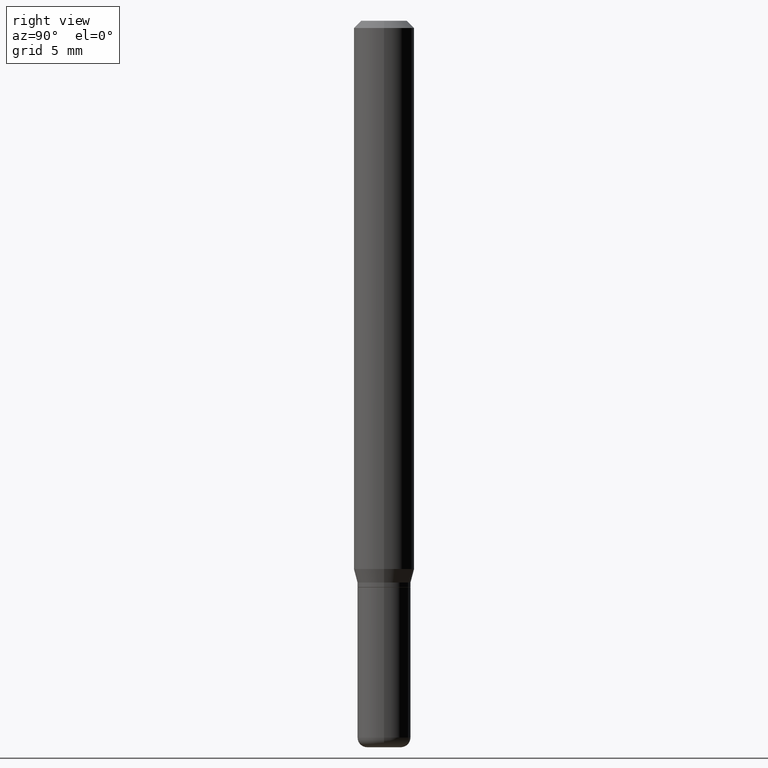
[diagram: clean part render]
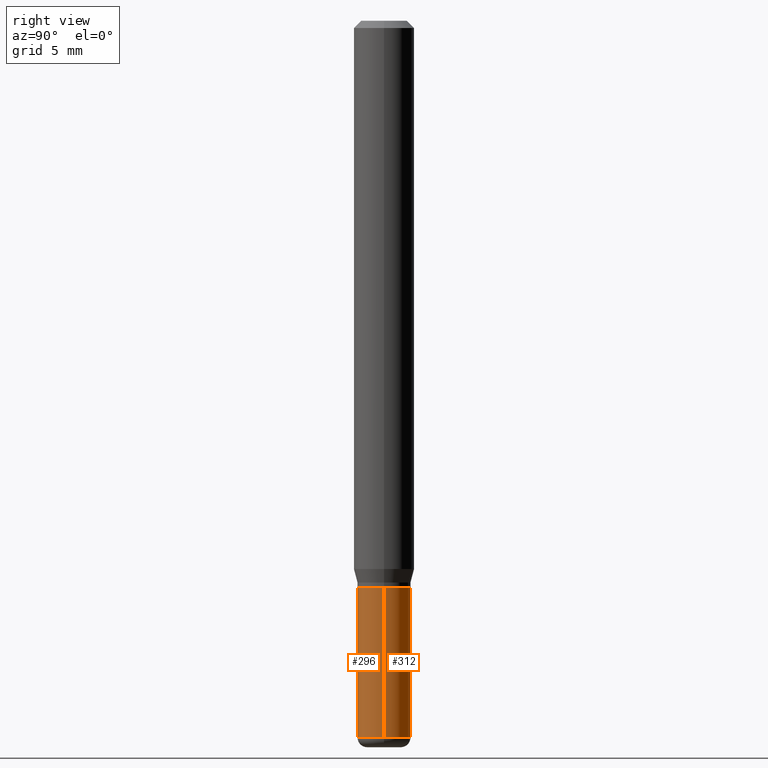
[diagram: same view with one multi-face feature highlighted, each face labeled with its STEP entity id]
A machine part, right view. The highlighted faces form ONE feature: a constant-radius fillet chain: 2 tangent blend faces with common blend radius 1.397 mm. The faces share edges in the B-rep.
Their STEP definitions:
[1] entity #312 (Cylinder):
#5 = DIRECTION ( 'NONE',  ( 1.000000000000000000, -6.982962677686265922E-15, 4.876176775795935232E-29 ) ) ;
#6 = ORIENTED_EDGE ( 'NONE', *, *, #426, .F. ) ;
#11 = LINE ( 'NONE', #58, #121 ) ;
#15 = CYLINDRICAL_SURFACE ( 'NONE', #168, 0.05500000000000002109 ) ;
#33 = LINE ( 'NONE', #191, #464 ) ;
#58 = CARTESIAN_POINT ( 'NONE',  ( -0.05500000000000002109, 3.907985046680552521E-16, -2.705414299640199063E-30 ) ) ;
#62 = DIRECTION ( 'NONE',  ( -2.445468806185136597E-29, 3.491481338843145583E-15, 1.000000000000000000 ) ) ;
#90 = CIRCLE ( 'NONE', #103, 0.05500000000000000028 ) ;
#97 = DIRECTION ( 'NONE',  ( 1.000000000000000000, -6.982962677686275388E-15, 0.000000000000000000 ) ) ;
#100 = CARTESIAN_POINT ( 'NONE',  ( 0.05500000000000000028, -4.469096113719225052E-15, -1.170000000000000151 ) ) ;
#103 = AXIS2_PLACEMENT_3D ( 'NONE', #419, #62, #222 ) ;
#121 = VECTOR ( 'NONE', #175, 39.37007874015748143 ) ;
#155 = EDGE_LOOP ( 'NONE', ( #270, #218, #385, #6 ) ) ;
#165 = CARTESIAN_POINT ( 'NONE',  ( 3.619293833154002365E-29, -5.167392381487854879E-15, -1.479999999999999982 ) ) ;
#168 = AXIS2_PLACEMENT_3D ( 'NONE', #219, #454, #5 ) ;
#175 = DIRECTION ( 'NONE',  ( -2.445468806185136877E-29, 3.491481338843145188E-15, 1.000000000000000000 ) ) ;
#191 = CARTESIAN_POINT ( 'NONE',  ( 0.05500000000000002109, -3.840629472727447874E-16, 2.681897226687765527E-30 ) ) ;
#199 = CIRCLE ( 'NONE', #201, 0.05500000000000003497 ) ;
#201 = AXIS2_PLACEMENT_3D ( 'NONE', #165, #370, #97 ) ;
#218 = ORIENTED_EDGE ( 'NONE', *, *, #290, .T. ) ;
#219 = CARTESIAN_POINT ( 'NONE',  ( 0.000000000000000000, 0.000000000000000000, 0.000000000000000000 ) ) ;
#220 = EDGE_CURVE ( 'NONE', #417, #294, #199, .T. ) ;
#222 = DIRECTION ( 'NONE',  ( 1.000000000000000000, -6.982962677686262766E-15, 0.000000000000000000 ) ) ;
#270 = ORIENTED_EDGE ( 'NONE', *, *, #220, .T. ) ;
#290 = EDGE_CURVE ( 'NONE', #294, #418, #11, .T. ) ;
#294 = VERTEX_POINT ( 'NONE', #446 ) ;
#299 = CARTESIAN_POINT ( 'NONE',  ( -0.05500000000000000028, -4.235414269299112812E-15, -1.170000000000000151 ) ) ;
#305 = DIRECTION ( 'NONE',  ( -2.445468806185136877E-29, 3.491481338843145188E-15, 1.000000000000000000 ) ) ;
#312 = ADVANCED_FACE ( 'NONE', ( #329 ), #15, .T. ) ;
#329 = FACE_OUTER_BOUND ( 'NONE', #155, .T. ) ;
#343 = CARTESIAN_POINT ( 'NONE',  ( 0.05500000000000003497, -5.551455328760600652E-15, -1.479999999999999982 ) ) ;
#370 = DIRECTION ( 'NONE',  ( -2.445468806185136597E-29, 3.491481338843145583E-15, 1.000000000000000000 ) ) ;
#385 = ORIENTED_EDGE ( 'NONE', *, *, #507, .F. ) ;
#417 = VERTEX_POINT ( 'NONE', #343 ) ;
#418 = VERTEX_POINT ( 'NONE', #299 ) ;
#419 = CARTESIAN_POINT ( 'NONE',  ( 2.861198503236610065E-29, -4.085033166446480067E-15, -1.170000000000000151 ) ) ;
#426 = EDGE_CURVE ( 'NONE', #417, #505, #33, .T. ) ;
#446 = CARTESIAN_POINT ( 'NONE',  ( -0.05500000000000002803, -4.235414269299112812E-15, -1.479999999999999982 ) ) ;
#454 = DIRECTION ( 'NONE',  ( -2.445468806185136597E-29, 3.491481338843145583E-15, 1.000000000000000000 ) ) ;
#464 = VECTOR ( 'NONE', #305, 39.37007874015748143 ) ;
#505 = VERTEX_POINT ( 'NONE', #100 ) ;
#507 = EDGE_CURVE ( 'NONE', #505, #418, #90, .T. ) ;
[2] entity #296 (Cylinder):
#11 = LINE ( 'NONE', #58, #121 ) ;
#33 = LINE ( 'NONE', #191, #464 ) ;
#58 = CARTESIAN_POINT ( 'NONE',  ( -0.05500000000000002109, 3.907985046680552521E-16, -2.705414299640199063E-30 ) ) ;
#76 = ORIENTED_EDGE ( 'NONE', *, *, #354, .T. ) ;
#95 = CYLINDRICAL_SURFACE ( 'NONE', #279, 0.05500000000000002109 ) ;
#100 = CARTESIAN_POINT ( 'NONE',  ( 0.05500000000000000028, -4.469096113719225052E-15, -1.170000000000000151 ) ) ;
#121 = VECTOR ( 'NONE', #175, 39.37007874015748143 ) ;
#128 = DIRECTION ( 'NONE',  ( -2.445468806185136597E-29, 3.491481338843145583E-15, 1.000000000000000000 ) ) ;
#139 = AXIS2_PLACEMENT_3D ( 'NONE', #373, #298, #288 ) ;
#145 = EDGE_LOOP ( 'NONE', ( #460, #76, #463, #156 ) ) ;
#156 = ORIENTED_EDGE ( 'NONE', *, *, #174, .F. ) ;
#174 = EDGE_CURVE ( 'NONE', #418, #505, #493, .T. ) ;
#175 = DIRECTION ( 'NONE',  ( -2.445468806185136877E-29, 3.491481338843145188E-15, 1.000000000000000000 ) ) ;
#191 = CARTESIAN_POINT ( 'NONE',  ( 0.05500000000000002109, -3.840629472727447874E-16, 2.681897226687765527E-30 ) ) ;
#206 = DIRECTION ( 'NONE',  ( 1.000000000000000000, -6.982962677686262766E-15, 0.000000000000000000 ) ) ;
#249 = DIRECTION ( 'NONE',  ( 1.000000000000000000, -6.982962677686265922E-15, 4.876176775795935232E-29 ) ) ;
#279 = AXIS2_PLACEMENT_3D ( 'NONE', #486, #128, #249 ) ;
#288 = DIRECTION ( 'NONE',  ( 1.000000000000000000, -6.982962677686275388E-15, 0.000000000000000000 ) ) ;
#290 = EDGE_CURVE ( 'NONE', #294, #418, #11, .T. ) ;
#294 = VERTEX_POINT ( 'NONE', #446 ) ;
#296 = ADVANCED_FACE ( 'NONE', ( #410 ), #95, .T. ) ;
#298 = DIRECTION ( 'NONE',  ( -2.445468806185136597E-29, 3.491481338843145583E-15, 1.000000000000000000 ) ) ;
#299 = CARTESIAN_POINT ( 'NONE',  ( -0.05500000000000000028, -4.235414269299112812E-15, -1.170000000000000151 ) ) ;
#305 = DIRECTION ( 'NONE',  ( -2.445468806185136877E-29, 3.491481338843145188E-15, 1.000000000000000000 ) ) ;
#323 = CARTESIAN_POINT ( 'NONE',  ( 2.861198503236610065E-29, -4.085033166446480067E-15, -1.170000000000000151 ) ) ;
#343 = CARTESIAN_POINT ( 'NONE',  ( 0.05500000000000003497, -5.551455328760600652E-15, -1.479999999999999982 ) ) ;
#354 = EDGE_CURVE ( 'NONE', #294, #417, #357, .T. ) ;
#357 = CIRCLE ( 'NONE', #139, 0.05500000000000003497 ) ;
#373 = CARTESIAN_POINT ( 'NONE',  ( 3.619293833154002365E-29, -5.167392381487854879E-15, -1.479999999999999982 ) ) ;
#399 = DIRECTION ( 'NONE',  ( -2.445468806185136597E-29, 3.491481338843145583E-15, 1.000000000000000000 ) ) ;
#410 = FACE_OUTER_BOUND ( 'NONE', #145, .T. ) ;
#417 = VERTEX_POINT ( 'NONE', #343 ) ;
#418 = VERTEX_POINT ( 'NONE', #299 ) ;
#426 = EDGE_CURVE ( 'NONE', #417, #505, #33, .T. ) ;
#446 = CARTESIAN_POINT ( 'NONE',  ( -0.05500000000000002803, -4.235414269299112812E-15, -1.479999999999999982 ) ) ;
#460 = ORIENTED_EDGE ( 'NONE', *, *, #290, .F. ) ;
#463 = ORIENTED_EDGE ( 'NONE', *, *, #426, .T. ) ;
#464 = VECTOR ( 'NONE', #305, 39.37007874015748143 ) ;
#480 = AXIS2_PLACEMENT_3D ( 'NONE', #323, #399, #206 ) ;
#486 = CARTESIAN_POINT ( 'NONE',  ( 0.000000000000000000, 0.000000000000000000, 0.000000000000000000 ) ) ;
#493 = CIRCLE ( 'NONE', #480, 0.05500000000000000028 ) ;
#505 = VERTEX_POINT ( 'NONE', #100 ) ;